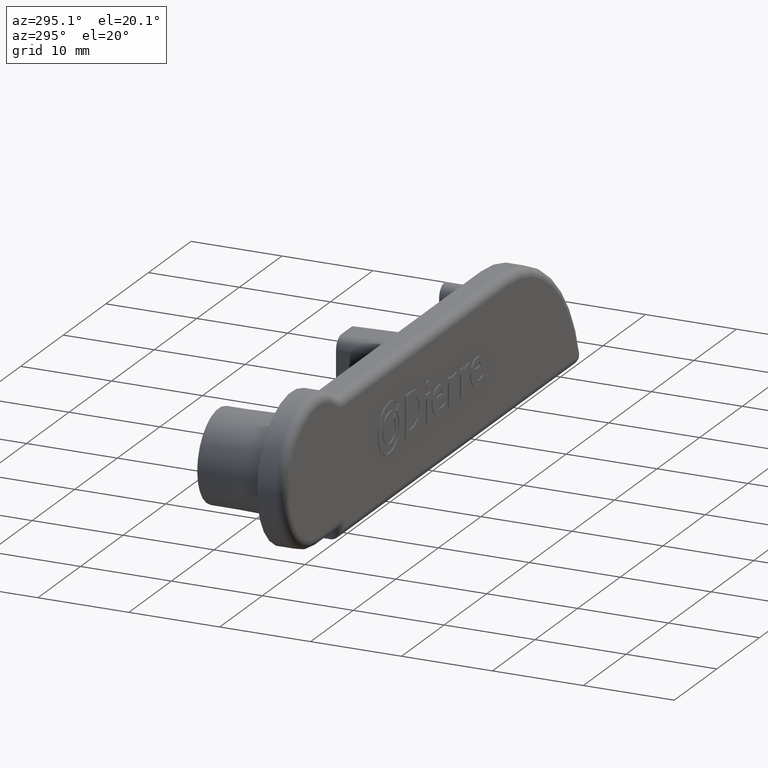
[diagram: clean part render]
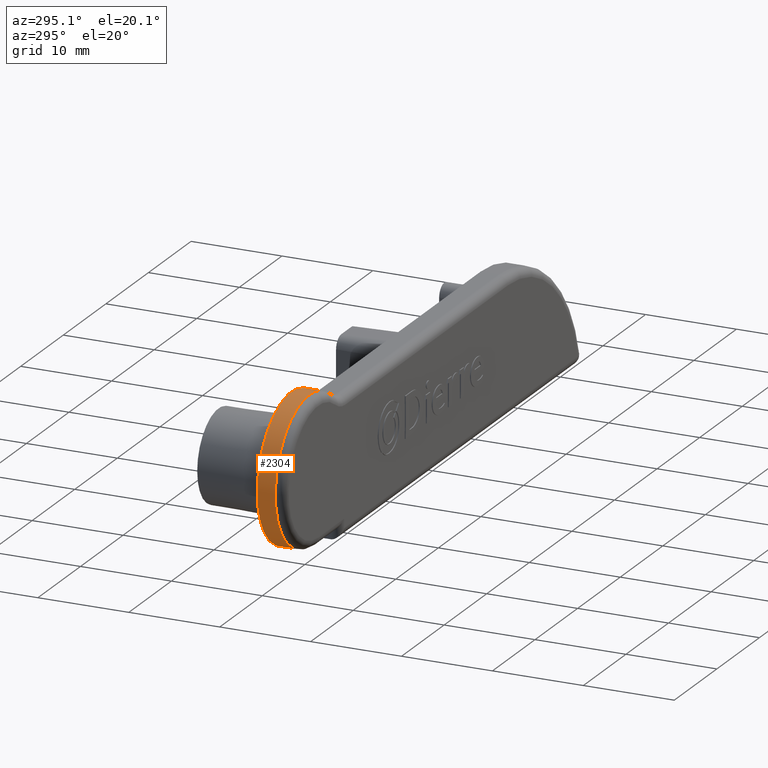
[diagram: same view with one face highlighted and labeled with its STEP entity id]
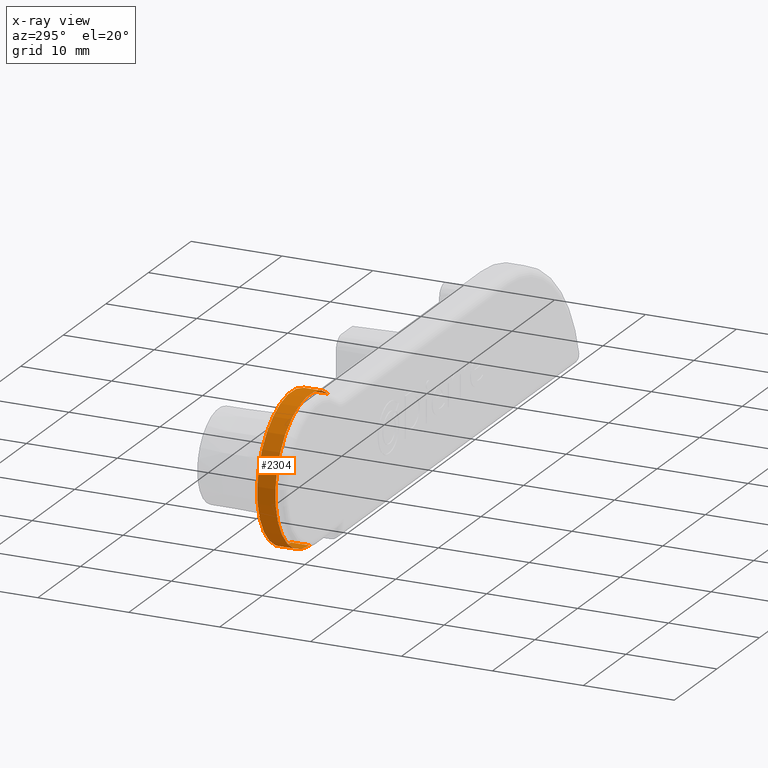
[diagram: x-ray of the same camera — body ghosted, the highlighted face saturated]
A machine part, auxiliary view. The second image highlights one B-rep face of the part: STEP entity #2304.
The next image is the same camera in x-ray: the body ghosted, the highlighted face saturated — about 0% of this face is hidden behind the body in this view.
In plain terms, the highlighted cylindrical surface (partial cylindrical patch) has radius 8 mm, axis along (0, 1, 0).
Its self-contained STEP definition (entity closure, byte-faithful):
#34=CYLINDRICAL_SURFACE('',#2435,8.);
#51=CIRCLE('',#2431,8.);
#53=CIRCLE('',#2436,8.);
#312=FACE_OUTER_BOUND('',#461,.T.);
#461=EDGE_LOOP('',(#1952,#1953,#1954,#1955));
#658=LINE('',#4373,#869);
#659=LINE('',#4376,#870);
#869=VECTOR('',#2800,10.);
#870=VECTOR('',#2803,10.);
#1089=VERTEX_POINT('',#4360);
#1090=VERTEX_POINT('',#4364);
#1091=VERTEX_POINT('',#4372);
#1092=VERTEX_POINT('',#4374);
#1387=EDGE_CURVE('',#1089,#1090,#51,.T.);
#1390=EDGE_CURVE('',#1091,#1089,#658,.T.);
#1391=EDGE_CURVE('',#1092,#1091,#53,.T.);
#1392=EDGE_CURVE('',#1092,#1090,#659,.T.);
#1952=ORIENTED_EDGE('',*,*,#1387,.F.);
#1953=ORIENTED_EDGE('',*,*,#1390,.F.);
#1954=ORIENTED_EDGE('',*,*,#1391,.F.);
#1955=ORIENTED_EDGE('',*,*,#1392,.T.);
#2304=ADVANCED_FACE('',(#312),#34,.T.);
#2431=AXIS2_PLACEMENT_3D('',#4366,#2789,#2790);
#2435=AXIS2_PLACEMENT_3D('',#4371,#2798,#2799);
#2436=AXIS2_PLACEMENT_3D('',#4375,#2801,#2802);
#2789=DIRECTION('center_axis',(0.,-1.,0.));
#2790=DIRECTION('ref_axis',(-0.953462589245592,0.,0.301511344577766));
#2798=DIRECTION('center_axis',(0.,1.,0.));
#2799=DIRECTION('ref_axis',(0.,0.,1.));
#2800=DIRECTION('',(0.,-1.,0.));
#2801=DIRECTION('center_axis',(0.,1.,0.));
#2802=DIRECTION('ref_axis',(0.,0.,1.));
#2803=DIRECTION('',(0.,-1.,0.));
#4360=CARTESIAN_POINT('',(4.59967659660858,-0.5,6.54545454545453));
#4364=CARTESIAN_POINT('',(0.,-0.5,-8.00000000000002));
#4366=CARTESIAN_POINT('Origin',(0.,-0.5,0.));
#4371=CARTESIAN_POINT('Origin',(0.,0.,0.));
#4372=CARTESIAN_POINT('',(4.59967659660858,1.5,6.54545454545453));
#4373=CARTESIAN_POINT('',(4.59967659660858,0.,6.54545454545453));
#4374=CARTESIAN_POINT('',(0.,1.5,-8.00000000000002));
#4375=CARTESIAN_POINT('Origin',(0.,1.5,0.));
#4376=CARTESIAN_POINT('',(0.,0.,-8.00000000000002));